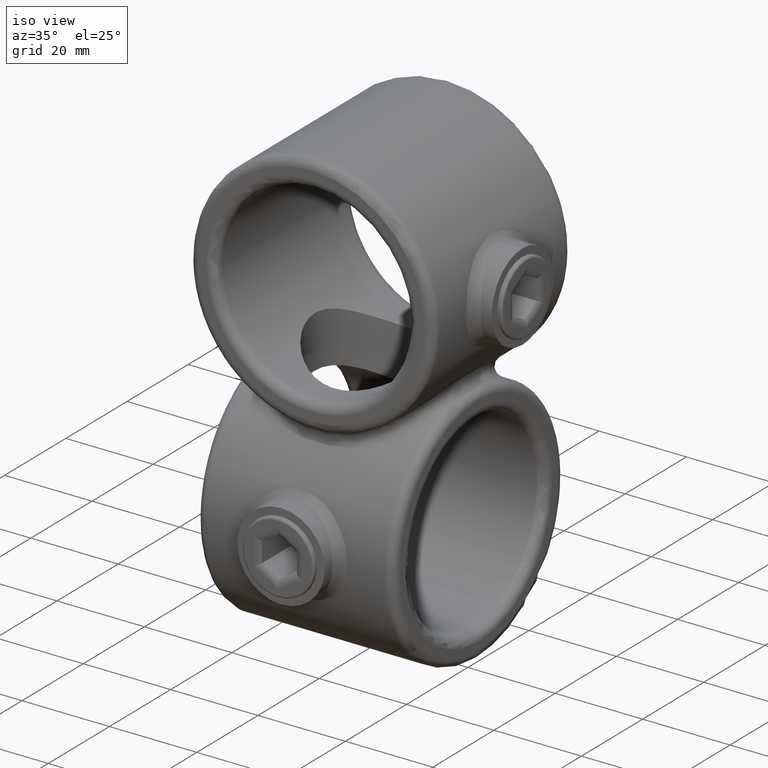
[diagram: clean part render]
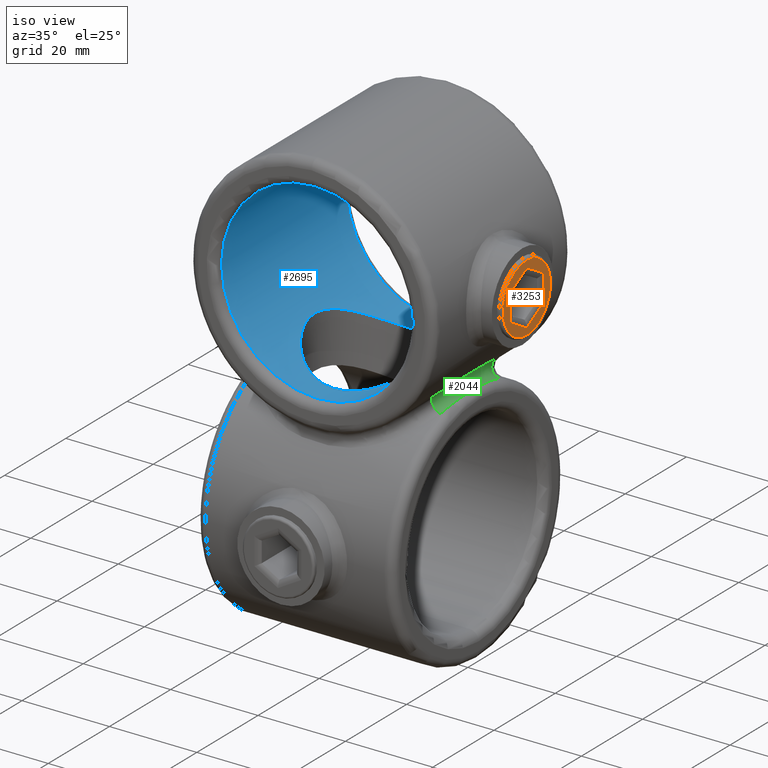
[diagram: same view with three faces highlighted in distinct colors, each labeled with its STEP entity id]
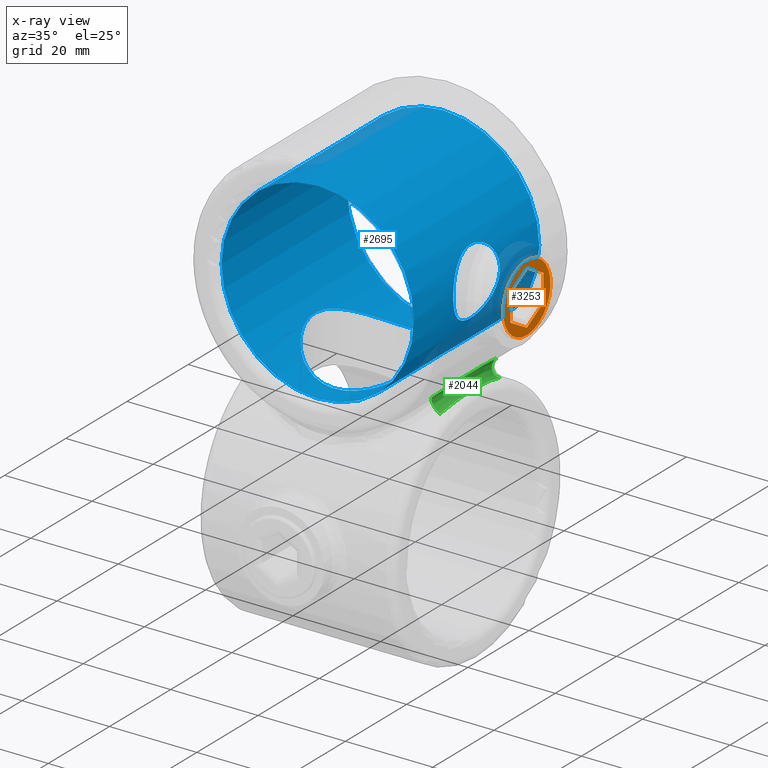
[diagram: x-ray of the same camera — body ghosted, the three highlighted faces saturated]
A machine part, iso view with three faces highlighted in distinct colors.
The next image is the same camera in x-ray (body ghosted, the three faces saturated) — at least one of them is partly hidden behind the body in this view.
Their STEP definitions:

[orange] entity #3253 — the highlighted planar face has unit normal (1, 0, 0).
#76 = CARTESIAN_POINT ( 'NONE',  ( 0.000000000000000000, 13.00000000000000000, 0.000000000000000000 ) ) ;
#122 = LINE ( 'NONE', #3307, #721 ) ;
#152 = EDGE_CURVE ( 'NONE', #3418, #341, #1518, .T. ) ;
#266 = VERTEX_POINT ( 'NONE', #2607 ) ;
#341 = VERTEX_POINT ( 'NONE', #2317 ) ;
#390 = DIRECTION ( 'NONE',  ( 0.000000000000000000, 0.000000000000000000, 1.000000000000000000 ) ) ;
#721 = VECTOR ( 'NONE', #3922, 1000.000000000000000 ) ;
#818 = LINE ( 'NONE', #1276, #2755 ) ;
#942 = PLANE ( 'NONE',  #3169 ) ;
#962 = VERTEX_POINT ( 'NONE', #2630 ) ;
#975 = DIRECTION ( 'NONE',  ( 0.000000000000000000, 1.000000000000000000, 0.000000000000000000 ) ) ;
#1005 = DIRECTION ( 'NONE',  ( 1.000000000000000000, -0.000000000000000000, 0.000000000000000000 ) ) ;
#1091 = CARTESIAN_POINT ( 'NONE',  ( 3.338806356441557099, 13.00000000000000000, 4.960106590458402742 ) ) ;
#1123 = FACE_OUTER_BOUND ( 'NONE', #2088, .T. ) ;
#1135 = ORIENTED_EDGE ( 'NONE', *, *, #152, .T. ) ;
#1248 = CARTESIAN_POINT ( 'NONE',  ( 0.000000000000000000, 13.00000000000000000, 0.000000000000000000 ) ) ;
#1276 = CARTESIAN_POINT ( 'NONE',  ( 2.626175134594813443, 13.00000000000000000, -5.371544418224547535 ) ) ;
#1518 = LINE ( 'NONE', #3518, #3165 ) ;
#1569 = EDGE_CURVE ( 'NONE', #962, #962, #2946, .T. ) ;
#1571 = EDGE_CURVE ( 'NONE', #3704, #3775, #818, .T. ) ;
#1617 = AXIS2_PLACEMENT_3D ( 'NONE', #76, #2228, #390 ) ;
#1641 = DIRECTION ( 'NONE',  ( -1.000000000000000000, 0.000000000000000000, -1.855319225643643478E-16 ) ) ;
#1710 = VECTOR ( 'NONE', #2010, 1000.000000000000227 ) ;
#1777 = DIRECTION ( 'NONE',  ( -0.4999999999999992228, 0.000000000000000000, 0.8660254037844390407 ) ) ;
#1793 = VECTOR ( 'NONE', #1641, 1000.000000000000000 ) ;
#1811 = EDGE_CURVE ( 'NONE', #1847, #266, #3238, .T. ) ;
#1847 = VERTEX_POINT ( 'NONE', #2967 ) ;
#1860 = FACE_BOUND ( 'NONE', #2742, .T. ) ;
#1935 = ORIENTED_EDGE ( 'NONE', *, *, #1569, .T. ) ;
#1988 = EDGE_CURVE ( 'NONE', #3775, #1847, #122, .T. ) ;
#1999 = CARTESIAN_POINT ( 'NONE',  ( 3.101262615825974844, 13.00000000000000000, -5.371544418224547535 ) ) ;
#2010 = DIRECTION ( 'NONE',  ( 0.4999999999999997780, 0.000000000000000000, -0.8660254037844387076 ) ) ;
#2088 = EDGE_LOOP ( 'NONE', ( #1935 ) ) ;
#2171 = ORIENTED_EDGE ( 'NONE', *, *, #1811, .T. ) ;
#2228 = DIRECTION ( 'NONE',  ( 0.000000000000000000, 1.000000000000000000, 0.000000000000000000 ) ) ;
#2294 = LINE ( 'NONE', #2668, #1710 ) ;
#2317 = CARTESIAN_POINT ( 'NONE',  ( -6.202525231651947024, 13.00000000000000000, 8.673617379884035472E-16 ) ) ;
#2561 = CARTESIAN_POINT ( 'NONE',  ( -2.626175134594815219, 13.00000000000000000, 5.371544418224547535 ) ) ;
#2607 = CARTESIAN_POINT ( 'NONE',  ( 3.101262615825978397, 13.00000000000000000, 5.371544418224548423 ) ) ;
#2614 = CARTESIAN_POINT ( 'NONE',  ( -3.101262615825973068, 13.00000000000000000, -5.371544418224547535 ) ) ;
#2617 = EDGE_CURVE ( 'NONE', #341, #3704, #2294, .T. ) ;
#2630 = CARTESIAN_POINT ( 'NONE',  ( 0.000000000000000000, 13.00000000000000000, 7.750000000000000000 ) ) ;
#2668 = CARTESIAN_POINT ( 'NONE',  ( -3.338806356441553547, 13.00000000000000000, -4.960106590458400966 ) ) ;
#2742 = EDGE_LOOP ( 'NONE', ( #1135, #3531, #2745, #3213, #2171, #2888 ) ) ;
#2745 = ORIENTED_EDGE ( 'NONE', *, *, #1571, .T. ) ;
#2755 = VECTOR ( 'NONE', #1005, 1000.000000000000000 ) ;
#2888 = ORIENTED_EDGE ( 'NONE', *, *, #3907, .T. ) ;
#2946 = CIRCLE ( 'NONE', #1617, 7.750000000000000000 ) ;
#2967 = CARTESIAN_POINT ( 'NONE',  ( 6.202525231651947912, 13.00000000000000000, -1.409462824231155764E-15 ) ) ;
#3134 = DIRECTION ( 'NONE',  ( 0.000000000000000000, -0.000000000000000000, 1.000000000000000000 ) ) ;
#3165 = VECTOR ( 'NONE', #3850, 1000.000000000000114 ) ;
#3169 = AXIS2_PLACEMENT_3D ( 'NONE', #1248, #975, #3134 ) ;
#3185 = VECTOR ( 'NONE', #1777, 1000.000000000000227 ) ;
#3213 = ORIENTED_EDGE ( 'NONE', *, *, #1988, .T. ) ;
#3238 = LINE ( 'NONE', #1091, #3185 ) ;
#3253 = ADVANCED_FACE ( 'NONE', ( #1860, #1123 ), #942, .T. ) ;
#3307 = CARTESIAN_POINT ( 'NONE',  ( 5.964981491036367878, 13.00000000000000000, -0.4114378277661481231 ) ) ;
#3343 = LINE ( 'NONE', #2561, #1793 ) ;
#3418 = VERTEX_POINT ( 'NONE', #3921 ) ;
#3518 = CARTESIAN_POINT ( 'NONE',  ( -5.964981491036366990, 13.00000000000000000, 0.4114378277661476790 ) ) ;
#3531 = ORIENTED_EDGE ( 'NONE', *, *, #2617, .T. ) ;
#3704 = VERTEX_POINT ( 'NONE', #2614 ) ;
#3775 = VERTEX_POINT ( 'NONE', #1999 ) ;
#3850 = DIRECTION ( 'NONE',  ( -0.4999999999999998335, 0.000000000000000000, -0.8660254037844387076 ) ) ;
#3907 = EDGE_CURVE ( 'NONE', #266, #3418, #3343, .T. ) ;
#3921 = CARTESIAN_POINT ( 'NONE',  ( -3.101262615825973956, 13.00000000000000000, 5.371544418224547535 ) ) ;
#3922 = DIRECTION ( 'NONE',  ( 0.4999999999999998890, -0.000000000000000000, 0.8660254037844387076 ) ) ;

[blue] entity #2695 — the highlighted cylindrical surface (bore or boss wall) has radius 22 mm, axis along (-0, -1, -0).
#6 = CARTESIAN_POINT ( 'NONE',  ( 7.638160736032747700, 12.94558388446425035, -20.64954476968555852 ) ) ;
#8 = CARTESIAN_POINT ( 'NONE',  ( 21.83462271507474384, 7.134393420986049783, -2.702393403582709741 ) ) ;
#18 = CARTESIAN_POINT ( 'NONE',  ( -7.667430613504349068, -12.90139389157289429, -20.62554290740601104 ) ) ;
#21 = CARTESIAN_POINT ( 'NONE',  ( 20.67305602479122228, -1.255594254057358361, 7.525127178381072923 ) ) ;
#34 = CARTESIAN_POINT ( 'NONE',  ( 14.99906112048535611, -1.036882269409412860, -16.09435202577049751 ) ) ;
#47 = CARTESIAN_POINT ( 'NONE',  ( 21.41773321504821936, 5.734349377110525836, 5.031814911919162192 ) ) ;
#51 = B_SPLINE_CURVE_WITH_KNOTS ( 'NONE', 3,
 ( #3360, #1783, #3955, #2434, #2134, #3047, #2421, #3022, #3034, #299, #2101, #1502, #1161, #1474, #596, #3651, #1146, #1172, #3971, #572, #548, #893, #1487, #3058, #2731, #3311, #870, #1450, #3630, #1767, #3940, #2087, #3012, #253, #2709, #845, #3430, #1529, #3692, #21, #904, #3729, #2155, #2510, #1200, #1872, #2803, #2470, #312, #3703, #2790, #1555, #1544, #47, #1850, #1570, #3716, #335, #2181, #3391, #322, #635, #620, #347, #921, #946, #2779, #2815, #361, #3107, #3097, #8, #1885, #1833, #2484, #3374, #929, #2496, #60, #606, #3081, #1236, #646, #1225, #2146, #3416, #3402, #2194, #1862 ),
 .UNSPECIFIED., .T., .F.,
 ( 4, 2, 2, 2, 2, 2, 2, 2, 2, 2, 2, 2, 2, 2, 2, 2, 2, 2, 2, 2, 2, 1, 2, 2, 2, 2, 2, 2, 2, 2, 2, 2, 2, 2, 2, 2, 2, 2, 2, 2, 2, 2, 2, 2, 4 ),
 ( 0.000000000000000000, 0.001501461663367374645, 0.002252192495051061859, 0.003002923326734749290, 0.004504384990102126320, 0.005255115821785815051, 0.006005846653469502049, 0.007507308316836877778, 0.009008769980204252639, 0.009759500811887941371, 0.01051023164357162837, 0.01201169330693900236, 0.01351315497030637809, 0.01501461663367375209, 0.01651607829704112435, 0.01726680912872481308, 0.01801753996040849487, 0.01951900162377586193, 0.02102046328714322551, 0.02252192495051059604, 0.02327265578219428130, 0.02402338661387796309, 0.02477411744556164488, 0.02552484827724532321, 0.02702630994061269026, 0.02852777160398005385, 0.03002923326734741397, 0.03077996409903109923, 0.03153069493071478102, 0.03228142576239846628, 0.03303215659408214461, 0.03453361825744950819, 0.03528434908913318652, 0.03603507992081687178, 0.03753654158418423537, 0.03828727241586792063, 0.03903800324755159895, 0.03978873407923527727, 0.04053946491091896254, 0.04204092657428631918, 0.04354238823765368277, 0.04504384990102103942, 0.04579458073270471774, 0.04654531156438839606, 0.04804677322775575271 ),
 .UNSPECIFIED. ) ;
#60 = CARTESIAN_POINT ( 'NONE',  ( 21.24049436844863337, 5.041190610016660578, -5.742064013625246766 ) ) ;
#85 = CARTESIAN_POINT ( 'NONE',  ( 1.025722204118190373, 14.97350134617962425, -21.98190843410769091 ) ) ;
#225 = CARTESIAN_POINT ( 'NONE',  ( -4.957272632626066766, 14.16611413949776832, -21.43982723672473867 ) ) ;
#253 = CARTESIAN_POINT ( 'NONE',  ( 21.23988548586972769, -5.038701048962225926, 5.744380954961320285 ) ) ;
#273 = CARTESIAN_POINT ( 'NONE',  ( -14.46079596665822820, 4.016413119679706156, -16.58082093972177873 ) ) ;
#284 = CARTESIAN_POINT ( 'NONE',  ( 4.977263904046719922, 14.15904944704892721, -21.43515876995187242 ) ) ;
#294 = CARTESIAN_POINT ( 'NONE',  ( 14.58767863818678734, -3.529232281504389945, -16.46871335115858770 ) ) ;
#299 = CARTESIAN_POINT ( 'NONE',  ( 21.10961248387739175, -4.449409778482963596, -6.197184970212590294 ) ) ;
#309 = CARTESIAN_POINT ( 'NONE',  ( 2.536063705156796022, 14.79269913498899847, -21.85905430174654995 ) ) ;
#312 = CARTESIAN_POINT ( 'NONE',  ( 20.90766126454527551, 3.387989993315587700, 6.849123641358018766 ) ) ;
#321 = CARTESIAN_POINT ( 'NONE',  ( 8.834067494357398687, 12.13225708143093584, -20.15305314738483133 ) ) ;
#322 = CARTESIAN_POINT ( 'NONE',  ( 21.86612931592375375, 7.231979957599387276, 2.467928310788698898 ) ) ;
#333 = CARTESIAN_POINT ( 'NONE',  ( 4.936467855388296577, -14.19901500600594879, -21.45987368452115973 ) ) ;
#335 = CARTESIAN_POINT ( 'NONE',  ( 21.66542382513451415, 6.598769858961003543, 3.828680771544732409 ) ) ;
#347 = CARTESIAN_POINT ( 'NONE',  ( 21.97832862680961341, 7.562282039497167041, 1.008260717355042857 ) ) ;
#361 = CARTESIAN_POINT ( 'NONE',  ( 21.93238654071083715, 7.427809546374198213, -1.741150023539525860 ) ) ;
#400 = CIRCLE ( 'NONE', #2239, 22.00000000000000000 ) ;
#519 = CARTESIAN_POINT ( 'NONE',  ( -3.509025057102380885, 14.59242860190847146, -21.72402833917552556 ) ) ;
#532 = CARTESIAN_POINT ( 'NONE',  ( -1.028044636911650045, 15.00000000000000533, -22.00000000000000355 ) ) ;
#533 = ORIENTED_EDGE ( 'NONE', *, *, #619, .T. ) ;
#544 = CARTESIAN_POINT ( 'NONE',  ( -12.96642247819893434, -7.556621219215588603, -17.77507721271802765 ) ) ;
#548 = CARTESIAN_POINT ( 'NONE',  ( 21.93214807940371003, -7.427105793317950955, -1.744120752521435502 ) ) ;
#557 = CARTESIAN_POINT ( 'NONE',  ( -14.20235431591701669, -4.923797347143072933, -16.80862314651261258 ) ) ;
#568 = CARTESIAN_POINT ( 'NONE',  ( -14.78877318169901400, 2.557642425495031180, -16.28836224153918266 ) ) ;
#572 = CARTESIAN_POINT ( 'NONE',  ( 21.91108197871979613, -7.364843628198604719, -1.990624038324368739 ) ) ;
#581 = CARTESIAN_POINT ( 'NONE',  ( 8.819414525139249506, -12.14287391076265621, -20.15945547529075199 ) ) ;
#594 = CARTESIAN_POINT ( 'NONE',  ( -1.052662226999785400, -14.97176097277775142, -21.98072112659617616 ) ) ;
#596 = CARTESIAN_POINT ( 'NONE',  ( 21.50472955117095708, -6.055171540852470002, -4.661166829668690781 ) ) ;
#604 = CARTESIAN_POINT ( 'NONE',  ( -2.575880259910304559, -14.78576153809504845, -21.85435753567283612 ) ) ;
#606 = CARTESIAN_POINT ( 'NONE',  ( 21.15035175818985280, 4.651928291994421372, -6.061788610552890866 ) ) ;
#608 = EDGE_LOOP ( 'NONE', ( #698 ) ) ;
#617 = CARTESIAN_POINT ( 'NONE',  ( 14.16675666250198695, -4.954373875810394345, -16.83272511901605739 ) ) ;
#619 = EDGE_CURVE ( 'NONE', #3681, #3681, #798, .T. ) ;
#620 = CARTESIAN_POINT ( 'NONE',  ( 21.96545535501798696, 7.524891623233034288, 1.256604829429523562 ) ) ;
#631 = VERTEX_POINT ( 'NONE', #2358 ) ;
#633 = CARTESIAN_POINT ( 'NONE',  ( 14.97424575020755277, 1.014909732218031380, -16.11759518720957018 ) ) ;
#635 = CARTESIAN_POINT ( 'NONE',  ( 21.91518116288209228, 7.377286110379626116, 1.991475131803960075 ) ) ;
#646 = CARTESIAN_POINT ( 'NONE',  ( 20.81118140044697640, 2.701486163473771462, -7.134774701856119172 ) ) ;
#698 = ORIENTED_EDGE ( 'NONE', *, *, #3062, .F. ) ;
#769 = CARTESIAN_POINT ( 'NONE',  ( 20.63636050760889162, 0.000000000000000000, -7.624999999999985789 ) ) ;
#798 = CIRCLE ( 'NONE', #2652, 22.00000000000000000 ) ;
#845 = CARTESIAN_POINT ( 'NONE',  ( 20.98574558890661734, -3.834666897946267916, 6.609199511160666063 ) ) ;
#852 = CARTESIAN_POINT ( 'NONE',  ( -9.975412398198393760, -11.21238622406623620, -19.61265243727037699 ) ) ;
#866 = CARTESIAN_POINT ( 'NONE',  ( -14.97191104760809033, 1.049046354614471932, -16.11977122533656726 ) ) ;
#870 = CARTESIAN_POINT ( 'NONE',  ( 21.86644352487346055, -7.232940398829818207, 2.465388843888933312 ) ) ;
#878 = CARTESIAN_POINT ( 'NONE',  ( -5.004531509665742561, -14.17547755779573215, -21.44423688668768335 ) ) ;
#890 = CARTESIAN_POINT ( 'NONE',  ( 14.00237940341367882, 5.400746360241621247, -16.97033402031881266 ) ) ;
#893 = CARTESIAN_POINT ( 'NONE',  ( 21.98261645709674283, -7.575267365103446338, -1.004430189336779078 ) ) ;
#902 = CARTESIAN_POINT ( 'NONE',  ( 11.30185342330741172, -9.908202382598373603, -18.89061496491328640 ) ) ;
#904 = CARTESIAN_POINT ( 'NONE',  ( 20.65924656668267900, -1.003802390371186792, 7.562819067106336668 ) ) ;
#919 = CARTESIAN_POINT ( 'NONE',  ( 6.751794077528043836, -13.40343999826196431, -20.94324252406440579 ) ) ;
#921 = CARTESIAN_POINT ( 'NONE',  ( 21.99565864146505945, 7.612501526352494885, 0.5044995840867542158 ) ) ;
#929 = CARTESIAN_POINT ( 'NONE',  ( 21.50449255108060242, 6.054291176447927469, -4.662098031544893217 ) ) ;
#946 = CARTESIAN_POINT ( 'NONE',  ( 22.00000359965280339, 7.625010385883468800, 0.2509227584278064249 ) ) ;
#1099 = VERTEX_POINT ( 'NONE', #1730 ) ;
#1106 = CARTESIAN_POINT ( 'NONE',  ( -14.99917499470775262, 0.5327495546023220951, -16.09424588766726671 ) ) ;
#1132 = CARTESIAN_POINT ( 'NONE',  ( -12.17571319098796323, 8.773609856053806055, -18.32634461231394596 ) ) ;
#1138 = ORIENTED_EDGE ( 'NONE', *, *, #1654, .T. ) ;
#1146 = CARTESIAN_POINT ( 'NONE',  ( 21.74189790547040246, -6.847146173374046185, -3.391686376140041315 ) ) ;
#1161 = CARTESIAN_POINT ( 'NONE',  ( 21.28509316720376177, -5.217688254469730502, -5.565712582313706136 ) ) ;
#1168 = CARTESIAN_POINT ( 'NONE',  ( 11.89338099096974410, 9.152708907545269668, -18.51142085898089462 ) ) ;
#1172 = CARTESIAN_POINT ( 'NONE',  ( 21.83435262132262267, -7.133564655147587530, -2.704525995297528240 ) ) ;
#1181 = CARTESIAN_POINT ( 'NONE',  ( -8.865101228325167781, -12.10942833839934707, -20.13932763877268428 ) ) ;
#1189 = DIRECTION ( 'NONE',  ( 0.000000000000000000, 0.000000000000000000, 1.000000000000000000 ) ) ;
#1196 = CARTESIAN_POINT ( 'NONE',  ( 14.17152457605938665, 4.941201431762468843, -16.82872467943387207 ) ) ;
#1200 = CARTESIAN_POINT ( 'NONE',  ( 20.65893883332975633, 0.9974168446168103497, 7.563658825007157915 ) ) ;
#1211 = CARTESIAN_POINT ( 'NONE',  ( 13.40944125343274074, -6.739462407427236457, -17.44333523485563475 ) ) ;
#1222 = CARTESIAN_POINT ( 'NONE',  ( -4.055564486865794294, -14.47646400859333404, -21.64589583118551630 ) ) ;
#1225 = CARTESIAN_POINT ( 'NONE',  ( 20.78146364550593717, 2.463087885312369441, -7.220580388854527243 ) ) ;
#1236 = CARTESIAN_POINT ( 'NONE',  ( 20.90850454013189719, 3.393333455650654251, -6.846573099697977227 ) ) ;
#1250 = CARTESIAN_POINT ( 'NONE',  ( 0.000000000000000000, 22.50000000000000000, 0.000000000000000000 ) ) ;
#1420 = CARTESIAN_POINT ( 'NONE',  ( -8.131516293641283255E-16, 15.00000000000000888, -22.00000000000000711 ) ) ;
#1432 = CARTESIAN_POINT ( 'NONE',  ( -14.16376001793966566, 4.963274774931155875, -16.83526492748626779 ) ) ;
#1446 = CARTESIAN_POINT ( 'NONE',  ( 0.000000000000000000, 20.49999999999999645, 0.000000000000000000 ) ) ;
#1447 = CARTESIAN_POINT ( 'NONE',  ( -13.42324328921319498, -6.711719282898749306, -17.43267109194180264 ) ) ;
#1450 = CARTESIAN_POINT ( 'NONE',  ( 21.74166348727912634, -6.846459346306680516, 3.394048229469690536 ) ) ;
#1458 = CARTESIAN_POINT ( 'NONE',  ( -11.33412867429149884, -9.871531548654179034, -18.87129062661863443 ) ) ;
#1463 = FACE_BOUND ( 'NONE', #2988, .T. ) ;
#1474 = CARTESIAN_POINT ( 'NONE',  ( 21.41731923223319356, -5.740732220939724684, -5.042601277762392975 ) ) ;
#1484 = CARTESIAN_POINT ( 'NONE',  ( 6.791760247564574193, 13.41009625206384825, -20.94625103352959883 ) ) ;
#1487 = CARTESIAN_POINT ( 'NONE',  ( 21.99988339459275721, -7.624663564660940196, -0.5069383500712786317 ) ) ;
#1500 = CARTESIAN_POINT ( 'NONE',  ( -6.817571760915980938, -13.36997276897671227, -20.92183614606784303 ) ) ;
#1502 = CARTESIAN_POINT ( 'NONE',  ( 21.24082390349373028, -5.034693334187710256, -5.731860609014176156 ) ) ;
#1514 = CARTESIAN_POINT ( 'NONE',  ( 11.29189505588965581, 9.885226238655016928, -18.88434059376837126 ) ) ;
#1517 = DIRECTION ( 'NONE',  ( 0.000000000000000000, 0.000000000000000000, -1.000000000000000000 ) ) ;
#1525 = CARTESIAN_POINT ( 'NONE',  ( 10.30782397136557549, 10.90746456531147146, -19.43949648108512207 ) ) ;
#1529 = CARTESIAN_POINT ( 'NONE',  ( 20.77893231174704880, -2.471997476136124750, 7.230253966135369303 ) ) ;
#1541 = CARTESIAN_POINT ( 'NONE',  ( -6.375574478538800882, -13.58673709815225195, -21.06127270345997360 ) ) ;
#1544 = CARTESIAN_POINT ( 'NONE',  ( 21.37324890084305551, 5.566458283347454739, 5.217013377194971824 ) ) ;
#1555 = CARTESIAN_POINT ( 'NONE',  ( 21.23965794442501220, 5.037851880277131045, 5.745338895548609770 ) ) ;
#1560 = CARTESIAN_POINT ( 'NONE',  ( 0.000000000000000000, -20.49999999999999645, 0.000000000000000000 ) ) ;
#1570 = CARTESIAN_POINT ( 'NONE',  ( 21.54604913611921546, 6.195977865238270432, 4.451008252176442248 ) ) ;
#1654 = EDGE_CURVE ( 'NONE', #631, #631, #400, .T. ) ;
#1730 = CARTESIAN_POINT ( 'NONE',  ( 0.000000000000000000, 15.00000000000000355, -22.00000000000000000 ) ) ;
#1737 = CARTESIAN_POINT ( 'NONE',  ( -3.996492383652048286, 14.46656111157289004, -21.63951923038492353 ) ) ;
#1765 = CARTESIAN_POINT ( 'NONE',  ( -13.63466705717373095, -6.271643831378375111, -17.26716607579550455 ) ) ;
#1767 = CARTESIAN_POINT ( 'NONE',  ( 21.54626958716178464, -6.196748339920726600, 4.449959614901866090 ) ) ;
#1783 = CARTESIAN_POINT ( 'NONE',  ( 20.63636050760888807, -0.5080329043630298358, -7.624999999999985789 ) ) ;
#1795 = CARTESIAN_POINT ( 'NONE',  ( -9.237337196541949069, 11.85790601382026033, -19.98558775840680823 ) ) ;
#1807 = CARTESIAN_POINT ( 'NONE',  ( -0.5448102151117172331, -14.99867154693434657, -21.99909423806490594 ) ) ;
#1820 = CARTESIAN_POINT ( 'NONE',  ( 11.90089936621351008, -9.179968064716776510, -18.51442623612462768 ) ) ;
#1831 = CARTESIAN_POINT ( 'NONE',  ( 9.221637132837134487, 11.84020336251019323, -19.97820262187411799 ) ) ;
#1833 = CARTESIAN_POINT ( 'NONE',  ( 21.73898407993326032, 6.836416793187994223, -3.386157133365277350 ) ) ;
#1838 = VERTEX_POINT ( 'NONE', #769 ) ;
#1848 = CARTESIAN_POINT ( 'NONE',  ( 10.29550688363713640, -10.91918629400074181, -19.44606243298661141 ) ) ;
#1850 = CARTESIAN_POINT ( 'NONE',  ( 21.50402882993780551, 6.048695944299450566, 4.649215144515823184 ) ) ;
#1858 = CARTESIAN_POINT ( 'NONE',  ( 14.89459403073917088, -2.043150227165039912, -16.19341281614321559 ) ) ;
#1862 = CARTESIAN_POINT ( 'NONE',  ( 20.63636050760889162, 5.421010862427522170E-16, -7.624999999999985789 ) ) ;
#1872 = CARTESIAN_POINT ( 'NONE',  ( 20.67264887702680554, 1.248947824297873321, 7.526244566691020488 ) ) ;
#1883 = CARTESIAN_POINT ( 'NONE',  ( 0.5140223184558236902, 15.00000000000000888, -22.00000000000000355 ) ) ;
#1885 = CARTESIAN_POINT ( 'NONE',  ( 21.77286709399465536, 6.943094545554348684, -3.161635292792290386 ) ) ;
#2055 = CARTESIAN_POINT ( 'NONE',  ( -6.767470012673439506, 13.39543766988532170, -20.93812712246290886 ) ) ;
#2087 = CARTESIAN_POINT ( 'NONE',  ( 21.41744710376905303, -5.733298609835538961, 5.033065880176717855 ) ) ;
#2097 = CARTESIAN_POINT ( 'NONE',  ( -5.423139703379095344, 13.99398009886227534, -21.32627696626732927 ) ) ;
#2101 = CARTESIAN_POINT ( 'NONE',  ( 21.15312840405047012, -4.650847035576439303, -6.047477561938728208 ) ) ;
#2108 = CARTESIAN_POINT ( 'NONE',  ( -12.96941819273429708, 7.595464317850735725, -17.78217607538291389 ) ) ;
#2117 = CARTESIAN_POINT ( 'NONE',  ( 14.59327303872507287, 3.505353074012253156, -16.46373869576988724 ) ) ;
#2129 = CARTESIAN_POINT ( 'NONE',  ( 12.69848128223315165, -7.998398463021489491, -17.96809448075072169 ) ) ;
#2134 = CARTESIAN_POINT ( 'NONE',  ( 20.73015510809695883, -1.984216512385078346, -7.366594443902308775 ) ) ;
#2143 = CARTESIAN_POINT ( 'NONE',  ( 5.441089251799574811, 13.98693032589549468, -21.32165349261074994 ) ) ;
#2146 = CARTESIAN_POINT ( 'NONE',  ( 20.73004966125873949, 1.983060674699985926, -7.366888993540050556 ) ) ;
#2154 = CARTESIAN_POINT ( 'NONE',  ( 13.99806494578994354, -5.411948134260394561, -16.97390127793968162 ) ) ;
#2155 = CARTESIAN_POINT ( 'NONE',  ( 20.63181072917495840, -0.002997238903065145392, 7.637279292131632147 ) ) ;
#2161 = DIRECTION ( 'NONE',  ( -0.000000000000000000, -1.000000000000000000, -0.000000000000000000 ) ) ;
#2164 = ORIENTED_EDGE ( 'NONE', *, *, #2658, .F. ) ;
#2167 = CARTESIAN_POINT ( 'NONE',  ( 15.00046009304932682, 0.4979325566805887782, -16.09304810790063911 ) ) ;
#2181 = CARTESIAN_POINT ( 'NONE',  ( 21.73834466594847115, 6.834383874527161673, 3.390244409704353146 ) ) ;
#2194 = CARTESIAN_POINT ( 'NONE',  ( 20.63636050760889873, 0.5080329043630237296, -7.624999999999985789 ) ) ;
#2239 = AXIS2_PLACEMENT_3D ( 'NONE', #1446, #2733, #3664 ) ;
#2358 = CARTESIAN_POINT ( 'NONE',  ( 0.000000000000000000, 20.49999999999999645, 22.00000000000000000 ) ) ;
#2366 = CARTESIAN_POINT ( 'NONE',  ( -15.00159356422581070, -0.9942238042613966709, -16.09199165398808518 ) ) ;
#2393 = CARTESIAN_POINT ( 'NONE',  ( -13.42415642387457275, 6.762350431746436463, -17.43642400030397965 ) ) ;
#2402 = CARTESIAN_POINT ( 'NONE',  ( -11.28672505007406990, 9.891254689314099124, -18.88746993257555218 ) ) ;
#2421 = CARTESIAN_POINT ( 'NONE',  ( 20.81137636762997545, -2.702961014776449566, -7.134204655069264156 ) ) ;
#2432 = CARTESIAN_POINT ( 'NONE',  ( 3.526277033851346943, 14.58838363546319172, -21.72130853249522886 ) ) ;
#2434 = CARTESIAN_POINT ( 'NONE',  ( 20.70827237386584230, -1.741507020058461919, -7.427662671633694202 ) ) ;
#2442 = CARTESIAN_POINT ( 'NONE',  ( -8.076492801691980361, -12.64905286950367724, -20.46833656051471806 ) ) ;
#2455 = CARTESIAN_POINT ( 'NONE',  ( 2.035995305633605312, 14.86985446194757365, -21.91143828143086836 ) ) ;
#2468 = CARTESIAN_POINT ( 'NONE',  ( 0.4690235057691026777, -15.00123272582437828, -22.00084049341722903 ) ) ;
#2470 = CARTESIAN_POINT ( 'NONE',  ( 20.77838800993375656, 2.467708437639833274, 7.231831435827101195 ) ) ;
#2481 = CARTESIAN_POINT ( 'NONE',  ( 9.940325471475928154, -11.24363998957175070, -19.63053126464459908 ) ) ;
#2484 = CARTESIAN_POINT ( 'NONE',  ( 21.66606515539267619, 6.600874567836600981, -3.825063351333062744 ) ) ;
#2486 = FACE_OUTER_BOUND ( 'NONE', #2901, .T. ) ;
#2496 = CARTESIAN_POINT ( 'NONE',  ( 21.41718510963094246, 5.740280460972199350, -5.043221404268416919 ) ) ;
#2510 = CARTESIAN_POINT ( 'NONE',  ( 20.64083727949121183, 0.4972426380537070534, 7.612918293396787384 ) ) ;
#2590 = FACE_BOUND ( 'NONE', #608, .T. ) ;
#2652 = AXIS2_PLACEMENT_3D ( 'NONE', #1560, #2161, #1189 ) ;
#2658 = EDGE_CURVE ( 'NONE', #1838, #1838, #51, .T. ) ;
#2682 = CARTESIAN_POINT ( 'NONE',  ( -14.90066042658263434, -1.998857804282092365, -16.18777140945326565 ) ) ;
#2694 = CARTESIAN_POINT ( 'NONE',  ( -10.96867053027024319, 10.24267069444372602, -19.07442431345317502 ) ) ;
#2695 = ADVANCED_FACE ( 'NONE', ( #2732, #2486, #1463, #2590 ), #3560, .F. ) ;
#2705 = CARTESIAN_POINT ( 'NONE',  ( -11.92992529085058173, -9.141750275971585182, -18.49555566650144911 ) ) ;
#2709 = CARTESIAN_POINT ( 'NONE',  ( 21.15165330957719902, -4.657852512096009256, 6.057276481397573242 ) ) ;
#2716 = CARTESIAN_POINT ( 'NONE',  ( -12.72033566763502677, -7.963462776397452814, -17.95258295391430536 ) ) ;
#2728 = CARTESIAN_POINT ( 'NONE',  ( -14.86648258391357302, 2.060658694159104520, -16.21705399747045462 ) ) ;
#2731 = CARTESIAN_POINT ( 'NONE',  ( 21.98247489727024728, -7.574850727779137038, 1.006355580253733617 ) ) ;
#2732 = FACE_OUTER_BOUND ( 'NONE', #2853, .T. ) ;
#2733 = DIRECTION ( 'NONE',  ( 0.000000000000000000, 1.000000000000000000, 0.000000000000000000 ) ) ;
#2739 = CARTESIAN_POINT ( 'NONE',  ( 7.610093028496840439, -12.93543239130317168, -20.64685484001730842 ) ) ;
#2751 = CARTESIAN_POINT ( 'NONE',  ( 13.61941060921988544, -6.304495181372314683, -17.27920141318065461 ) ) ;
#2765 = CARTESIAN_POINT ( 'NONE',  ( -2.070283436192067228, -14.86524977536441305, -21.90831179034962517 ) ) ;
#2776 = CARTESIAN_POINT ( 'NONE',  ( 3.985145410040852543, -14.49654498217794263, -21.65935080343463781 ) ) ;
#2779 = CARTESIAN_POINT ( 'NONE',  ( 21.99999279391161622, 7.624979208662980845, -0.5027917357800624210 ) ) ;
#2789 = CARTESIAN_POINT ( 'NONE',  ( 14.79468593128575371, 2.523566197047902193, -16.28298430939447172 ) ) ;
#2790 = CARTESIAN_POINT ( 'NONE',  ( 21.15126453352803892, 4.656059681203969625, 6.058616424584794657 ) ) ;
#2801 = CARTESIAN_POINT ( 'NONE',  ( -8.131516293641283255E-16, 15.00000000000000888, -22.00000000000000711 ) ) ;
#2803 = CARTESIAN_POINT ( 'NONE',  ( 20.72629806253243956, 1.990827133846863939, 7.377780432148797196 ) ) ;
#2815 = CARTESIAN_POINT ( 'NONE',  ( 21.98279126476140632, 7.575773091525833003, -1.000809328709070023 ) ) ;
#2847 = B_SPLINE_CURVE_WITH_KNOTS ( 'NONE', 3,
 ( #1420, #532, #3599, #519, #1737, #225, #2097, #2981, #2055, #3614, #3911, #1795, #3322, #2694, #2402, #3625, #1132, #2108, #2393, #3964, #1432, #273, #3923, #568, #2728, #866, #1106, #2366, #2682, #3308, #557, #1765, #1447, #544, #2716, #2705, #1458, #3009, #852, #3042, #1181, #2442, #18, #1500, #1541, #878, #1222, #604, #2765, #594, #1807, #2468, #3358, #3993, #3672, #2776, #333, #3400, #919, #2739, #3980, #581, #3056, #2481, #1848, #902, #1820, #2129, #3069, #1211, #2751, #2154, #617, #3712, #294, #1858, #34, #2167, #633, #3659, #2789, #2117, #3385, #1196, #890, #3370, #3080, #3029, #1168, #1514, #3690, #1525, #3349, #1831, #321, #6, #1484, #2143, #284, #3702, #2432, #309, #2455, #85, #1883, #2801 ),
 .UNSPECIFIED., .T., .F.,
 ( 4, 2, 2, 2, 2, 2, 2, 2, 2, 2, 2, 2, 2, 2, 2, 2, 2, 2, 2, 2, 2, 2, 2, 2, 2, 2, 2, 2, 2, 2, 2, 2, 2, 2, 2, 2, 2, 2, 2, 2, 2, 2, 2, 2, 2, 2, 2, 2, 2, 2, 2, 2, 4 ),
 ( 0.000000000000000000, 0.003034778666230587320, 0.004552167999345881413, 0.006069557332461174640, 0.007586946665576467866, 0.009104335998691762827, 0.01213911466492234928, 0.01365650399803763904, 0.01517389333115292879, 0.01820867199738351525, 0.01972606133049881194, 0.02124345066361410517, 0.02276083999672939839, 0.02427822932984469162, 0.02731300799607527807, 0.03034778666230586452, 0.03186517599542115775, 0.03338256532853645098, 0.03641734399476703743, 0.03793473332788233066, 0.03945212266099762388, 0.04096951199411291711, 0.04248690132722821033, 0.04552167999345878985, 0.04703906932657407614, 0.04855645865968936936, 0.05007384799280465565, 0.05159123732591994888, 0.05462601599215052145, 0.05614340532526581468, 0.05766079465838110790, 0.05917818399149640113, 0.06069557332461169435, 0.06373035199084228775, 0.06524774132395758097, 0.06676513065707287420, 0.06828251999018816742, 0.06979990932330346065, 0.07283468798953404710, 0.07435207732264934033, 0.07586946665576463356, 0.07738685598887992678, 0.07890424532199522001, 0.08193902398822580646, 0.08345641332134109969, 0.08497380265445639291, 0.08649119198757168614, 0.08800858132068697937, 0.09104335998691757970, 0.09256074932003287292, 0.09407813865314816615, 0.09559552798626347325, 0.09711291731937876648 ),
 .UNSPECIFIED. ) ;
#2853 = EDGE_LOOP ( 'NONE', ( #533 ) ) ;
#2901 = EDGE_LOOP ( 'NONE', ( #1138 ) ) ;
#2981 = CARTESIAN_POINT ( 'NONE',  ( -6.328242611923307948, 13.60864683553652377, -21.07543306622545742 ) ) ;
#2988 = EDGE_LOOP ( 'NONE', ( #2164 ) ) ;
#3009 = CARTESIAN_POINT ( 'NONE',  ( -10.32798425590709357, -10.88853264632581741, -19.42883840814114649 ) ) ;
#3012 = CARTESIAN_POINT ( 'NONE',  ( 21.37281694012202848, -5.564774560389263769, 5.218750621190686445 ) ) ;
#3022 = CARTESIAN_POINT ( 'NONE',  ( 20.90860310004765310, -3.393855672290382319, -6.846266567036095374 ) ) ;
#3029 = CARTESIAN_POINT ( 'NONE',  ( 12.17882113602346905, 8.769570456767354472, -18.32433529392846339 ) ) ;
#3034 = CARTESIAN_POINT ( 'NONE',  ( 20.98489372196626945, -3.830133437854334133, -6.611928506554288987 ) ) ;
#3036 = AXIS2_PLACEMENT_3D ( 'NONE', #1250, #3071, #1517 ) ;
#3042 = CARTESIAN_POINT ( 'NONE',  ( -9.244641419895845758, -11.82214288398286151, -19.96751344451391574 ) ) ;
#3047 = CARTESIAN_POINT ( 'NONE',  ( 20.78170271618218123, -2.465147489712833817, -7.219894509126600468 ) ) ;
#3056 = CARTESIAN_POINT ( 'NONE',  ( 9.202595920285107312, -11.85503011476234114, -19.98699718664647307 ) ) ;
#3058 = CARTESIAN_POINT ( 'NONE',  ( 22.00011542964955069, -7.625333042988611254, 0.4967664929795495010 ) ) ;
#3062 = EDGE_CURVE ( 'NONE', #1099, #1099, #2847, .T. ) ;
#3069 = CARTESIAN_POINT ( 'NONE',  ( 12.94790379501317901, -7.588494948635887027, -17.78861563359846798 ) ) ;
#3071 = DIRECTION ( 'NONE',  ( -0.000000000000000000, -1.000000000000000000, -0.000000000000000000 ) ) ;
#3080 = CARTESIAN_POINT ( 'NONE',  ( 12.98022032285329352, 7.578263746269433554, -17.77452315198482680 ) ) ;
#3081 = CARTESIAN_POINT ( 'NONE',  ( 20.98471832579984309, 3.829028669500126991, -6.612432036779877897 ) ) ;
#3097 = CARTESIAN_POINT ( 'NONE',  ( 21.86249712203614948, 7.219015430525962174, -2.467673975803815090 ) ) ;
#3107 = CARTESIAN_POINT ( 'NONE',  ( 21.91135148318828385, 7.365645063057995934, -1.987679914392844971 ) ) ;
#3308 = CARTESIAN_POINT ( 'NONE',  ( -14.49688323211304564, -3.983150791087994858, -16.55034745579434130 ) ) ;
#3311 = CARTESIAN_POINT ( 'NONE',  ( 21.91552872549091546, -7.378316898645443267, 1.987851816712461250 ) ) ;
#3322 = CARTESIAN_POINT ( 'NONE',  ( -9.967281022136932123, 11.24942014734491202, -19.62740159549499808 ) ) ;
#3349 = CARTESIAN_POINT ( 'NONE',  ( 9.957595249216019795, 11.22832596285435258, -19.62176007047199988 ) ) ;
#3358 = CARTESIAN_POINT ( 'NONE',  ( 0.9750051185251846775, -14.97688030092303180, -21.98421241487637445 ) ) ;
#3360 = CARTESIAN_POINT ( 'NONE',  ( 20.63636050760889162, 5.421010862427522170E-16, -7.624999999999985789 ) ) ;
#3370 = CARTESIAN_POINT ( 'NONE',  ( 13.43587748563003359, 6.739136221383791536, -17.42735375966400113 ) ) ;
#3374 = CARTESIAN_POINT ( 'NONE',  ( 21.62680501342272166, 6.471242097236009627, -4.040531449598909752 ) ) ;
#3385 = CARTESIAN_POINT ( 'NONE',  ( 14.46782651105361239, 3.991187347790247308, -16.57468187302840334 ) ) ;
#3391 = CARTESIAN_POINT ( 'NONE',  ( 21.77276342539654053, 6.942778740525270109, 3.162490027444849527 ) ) ;
#3400 = CARTESIAN_POINT ( 'NONE',  ( 6.304392086798174866, -13.61983208130454415, -21.08265552003916454 ) ) ;
#3402 = CARTESIAN_POINT ( 'NONE',  ( 20.65513876949686178, 1.006754158728072168, -7.574700002619595196 ) ) ;
#3416 = CARTESIAN_POINT ( 'NONE',  ( 20.70820922133502506, 1.740717378502645962, -7.427838196583784303 ) ) ;
#3430 = CARTESIAN_POINT ( 'NONE',  ( 20.90787754574373380, -3.389113006919818982, 6.848449237832352487 ) ) ;
#3560 = CYLINDRICAL_SURFACE ( 'NONE', #3036, 22.00000000000000000 ) ;
#3564 = CARTESIAN_POINT ( 'NONE',  ( 0.000000000000000000, -20.49999999999999645, 22.00000000000000000 ) ) ;
#3599 = CARTESIAN_POINT ( 'NONE',  ( -2.033143738700570857, 14.89547729851106439, -21.92836024577481169 ) ) ;
#3614 = CARTESIAN_POINT ( 'NONE',  ( -7.620753230209468931, 12.92905723339752022, -20.64286651541164375 ) ) ;
#3625 = CARTESIAN_POINT ( 'NONE',  ( -11.89179719582502948, 9.154902573933568988, -18.51247801520053926 ) ) ;
#3630 = CARTESIAN_POINT ( 'NONE',  ( 21.66750249047058219, -6.609887793085299279, 3.833383702826280270 ) ) ;
#3651 = CARTESIAN_POINT ( 'NONE',  ( 21.66839849050474598, -6.612957164797943932, -3.828887062803088437 ) ) ;
#3659 = CARTESIAN_POINT ( 'NONE',  ( 14.87126758369049639, 2.025704323546672292, -16.21265896947954488 ) ) ;
#3664 = DIRECTION ( 'NONE',  ( 0.000000000000000000, 0.000000000000000000, 1.000000000000000000 ) ) ;
#3672 = CARTESIAN_POINT ( 'NONE',  ( 2.492494172783336737, -14.80017813705330809, -21.86411873572760456 ) ) ;
#3681 = VERTEX_POINT ( 'NONE', #3564 ) ;
#3690 = CARTESIAN_POINT ( 'NONE',  ( 10.97497602693495367, 10.23591322141738225, -19.07079336763373689 ) ) ;
#3692 = CARTESIAN_POINT ( 'NONE',  ( 20.72684693076449847, -1.996345360403078528, 7.376242548108289832 ) ) ;
#3702 = CARTESIAN_POINT ( 'NONE',  ( 4.019794998371907901, 14.46005136178869499, -21.63516664217392460 ) ) ;
#3703 = CARTESIAN_POINT ( 'NONE',  ( 20.98554274749458415, 3.833523809052763909, 6.609827527296566529 ) ) ;
#3712 = CARTESIAN_POINT ( 'NONE',  ( 14.46137243304723619, -4.013916066456613585, -16.58029965409551565 ) ) ;
#3716 = CARTESIAN_POINT ( 'NONE',  ( 21.62674552940632822, 6.471014644099920332, 4.040740729533354170 ) ) ;
#3729 = CARTESIAN_POINT ( 'NONE',  ( 20.64098418219159825, -0.5033669216088962894, 7.612520714727058824 ) ) ;
#3911 = CARTESIAN_POINT ( 'NONE',  ( -8.035915788723377418, 12.67511896651672565, -20.48443522700701180 ) ) ;
#3923 = CARTESIAN_POINT ( 'NONE',  ( -14.58593320862419773, 3.535519683156305160, -16.47024921380648266 ) ) ;
#3940 = CARTESIAN_POINT ( 'NONE',  ( 21.50412552354316631, -6.049056706553280982, 4.648803939148644204 ) ) ;
#3955 = CARTESIAN_POINT ( 'NONE',  ( 20.65512392540477293, -1.006716115207703099, -7.574742604297248327 ) ) ;
#3964 = CARTESIAN_POINT ( 'NONE',  ( -13.99261239376248867, 5.425968868462375916, -16.97839841683195061 ) ) ;
#3971 = CARTESIAN_POINT ( 'NONE',  ( 21.86220862496995565, -7.218142015182904991, -2.470208812716792046 ) ) ;
#3980 = CARTESIAN_POINT ( 'NONE',  ( 8.023159893528118758, -12.68307394529415610, -20.48937829582316894 ) ) ;
#3993 = CARTESIAN_POINT ( 'NONE',  ( 1.985095812895469880, -14.87672588787437000, -21.91610424088139553 ) ) ;

[green] entity #2044 — the highlighted face is a freeform B-spline surface patch.
#1 = CARTESIAN_POINT ( 'NONE',  ( 20.59828011833579353, 0.8941876716308260198, -18.96604482144088166 ) ) ;
#5 = CARTESIAN_POINT ( 'NONE',  ( 21.08530879107980738, 5.453462693447504783, -22.62196605002862881 ) ) ;
#38 = CARTESIAN_POINT ( 'NONE',  ( 20.47048638175271762, -3.589309731649667157, -19.10405498754199627 ) ) ;
#100 = EDGE_CURVE ( 'NONE', #1247, #2336, #350, .T. ) ;
#224 = CARTESIAN_POINT ( 'NONE',  ( 16.66324535814191066, 7.984673815224831550, -22.82389214718334003 ) ) ;
#237 = CARTESIAN_POINT ( 'NONE',  ( 19.75095090553830701, 8.442009450664381021, -19.84734440841323533 ) ) ;
#249 = CARTESIAN_POINT ( 'NONE',  ( 17.25225069462110028, 7.207204967101503712, -22.33391148462226283 ) ) ;
#272 = CARTESIAN_POINT ( 'NONE',  ( 20.57331731109907480, -1.800286111512419351, -18.99327309236522510 ) ) ;
#283 = CARTESIAN_POINT ( 'NONE',  ( 17.07153798967602754, -7.494486862999231391, -22.48682539720028473 ) ) ;
#293 = CARTESIAN_POINT ( 'NONE',  ( 20.46962219841077157, -3.601222706377344540, -19.10498298870383493 ) ) ;
#338 = CARTESIAN_POINT ( 'NONE',  ( 20.17284590946601242, 6.257349452957400970, -19.41859858048655596 ) ) ;
#350 = B_SPLINE_CURVE_WITH_KNOTS ( 'NONE', 3,
 ( #3429, #2814, #372, #2578, #2897, #3808, #3837, #1039, #3490, #2254, #450, #761, #1318, #1028, #1939, #1305 ),
 .UNSPECIFIED., .F., .F.,
 ( 4, 2, 2, 2, 2, 2, 2, 4 ),
 ( 0.000000000000000000, 0.002511431423528065216, 0.005022862847056127830, 0.01004572569411225566, 0.01255715711764032044, 0.01506858854116838176, 0.01758001996469644307, 0.02009145138822450785 ),
 .UNSPECIFIED. ) ;
#351 = CARTESIAN_POINT ( 'NONE',  ( 20.17139971744139260, -6.266141702546588199, -19.42009696985540401 ) ) ;
#352 = CARTESIAN_POINT ( 'NONE',  ( 20.49999999999999645, 9.814194670230657280, -23.77631637288887489 ) ) ;
#372 = CARTESIAN_POINT ( 'NONE',  ( 20.78735771320225467, 8.244882252040646620, -23.24752961476865210 ) ) ;
#450 = CARTESIAN_POINT ( 'NONE',  ( 21.17632480160088448, -4.168593731485771059, -22.41752804333555460 ) ) ;
#476 = ORIENTED_EDGE ( 'NONE', *, *, #687, .F. ) ;
#541 = VERTEX_POINT ( 'NONE', #2183 ) ;
#543 = CARTESIAN_POINT ( 'NONE',  ( 19.93569336671615488, 7.583297122088563214, -19.66177183591107891 ) ) ;
#556 = CARTESIAN_POINT ( 'NONE',  ( 16.17799585300437215, -8.298292718235513732, -23.20899116147276686 ) ) ;
#567 = CARTESIAN_POINT ( 'NONE',  ( 20.77566936881447646, -8.279508015242408092, -23.26796673896498646 ) ) ;
#574 = ORIENTED_EDGE ( 'NONE', *, *, #100, .F. ) ;
#580 = CARTESIAN_POINT ( 'NONE',  ( 20.59820970715230715, -0.9007271117192141574, -18.96612129201099606 ) ) ;
#593 = CARTESIAN_POINT ( 'NONE',  ( 19.93497959735413971, -7.586792014586556832, -19.66249294627599298 ) ) ;
#603 = CARTESIAN_POINT ( 'NONE',  ( 18.63847583334187874, -1.641997052547079505, -21.08909974683336941 ) ) ;
#613 = CARTESIAN_POINT ( 'NONE',  ( 20.59821470026919599, -0.8976998228539507796, -18.96611586920068504 ) ) ;
#687 = EDGE_CURVE ( 'NONE', #541, #2407, #1229, .T. ) ;
#761 = CARTESIAN_POINT ( 'NONE',  ( 21.05975418159540880, -5.820017429702117440, -22.67947664043222034 ) ) ;
#791 = CARTESIAN_POINT ( 'NONE',  ( 20.58043995295554751, 9.438682525452511740, -23.63578122373543522 ) ) ;
#829 = CARTESIAN_POINT ( 'NONE',  ( 17.56958115393212339, 6.583263066915291617, -22.06081051635565160 ) ) ;
#841 = CARTESIAN_POINT ( 'NONE',  ( 20.01726601106467029, 7.148727360631679240, -19.57855744890082050 ) ) ;
#851 = CARTESIAN_POINT ( 'NONE',  ( 18.46947994052399622, 3.242102475657155480, -21.24823026580085994 ) ) ;
#865 = CARTESIAN_POINT ( 'NONE',  ( 21.05043702304045894, -5.876222234056686311, -22.69897403882825415 ) ) ;
#877 = CARTESIAN_POINT ( 'NONE',  ( 18.63872340719236931, 1.636685688061992883, -21.08886098522021868 ) ) ;
#889 = CARTESIAN_POINT ( 'NONE',  ( 19.41434195223748205, -9.700475186688574780, -20.17696436766537005 ) ) ;
#901 = CARTESIAN_POINT ( 'NONE',  ( 16.66382565346125233, -7.984065035898390228, -22.82341775679376639 ) ) ;
#908 = AXIS2_PLACEMENT_3D ( 'NONE', #978, #3445, #3460 ) ;
#909 = EDGE_CURVE ( 'NONE', #2407, #1247, #2591, .T. ) ;
#912 = CARTESIAN_POINT ( 'NONE',  ( 19.28529228833331999, -10.10803937441636435, -20.30075911199203631 ) ) ;
#978 = CARTESIAN_POINT ( 'NONE',  ( 20.49999999999976197, -10.51520857524744557, -21.90319611380962783 ) ) ;
#994 = DIRECTION ( 'NONE',  ( 0.3507117937966000576, -0.8770730540272135833, 0.3282439574331077470 ) ) ;
#1013 = EDGE_LOOP ( 'NONE', ( #2229, #476, #1911, #574 ) ) ;
#1028 = CARTESIAN_POINT ( 'NONE',  ( 20.78731485258109046, -8.244901571429144482, -23.24759838540709467 ) ) ;
#1039 = CARTESIAN_POINT ( 'NONE',  ( 21.28477527319128626, -0.8319980424805155650, -22.16040050830346431 ) ) ;
#1119 = CARTESIAN_POINT ( 'NONE',  ( 20.77562907683183013, 8.279816985439397925, -23.26804869518927887 ) ) ;
#1131 = CARTESIAN_POINT ( 'NONE',  ( 17.70977558844676736, 6.245662387692037854, -21.93778030718081595 ) ) ;
#1144 = CARTESIAN_POINT ( 'NONE',  ( 16.17799585300458887, 8.298292718235440901, -23.20899116147261410 ) ) ;
#1167 = CARTESIAN_POINT ( 'NONE',  ( 18.46795178418655681, -3.253535509211927579, -21.24966344301092747 ) ) ;
#1180 = CARTESIAN_POINT ( 'NONE',  ( 20.22408029098745175, -5.840085524453864529, -19.36473669273609133 ) ) ;
#1195 = CARTESIAN_POINT ( 'NONE',  ( 20.22590974331529168, 5.827022870812124999, -19.36282704187989268 ) ) ;
#1210 = CARTESIAN_POINT ( 'NONE',  ( 21.27149686181635246, 1.683303032853291858, -22.19271272002654527 ) ) ;
#1229 = B_SPLINE_CURVE_WITH_KNOTS ( 'NONE', 3,
 ( #3409, #912, #3365, #1549, #3719, #3697, #351, #3052, #38, #2795, #613, #1, #3396, #2476, #2785, #338, #1241, #3420, #1535, #3684, #3708, #1853 ),
 .UNSPECIFIED., .F., .F.,
 ( 4, 2, 2, 2, 2, 2, 2, 2, 2, 2, 4 ),
 ( 0.000000000000000000, 0.001345717674831033031, 0.002691435349662066063, 0.005382870699324132126, 0.008074306048986198622, 0.01076574139864826425, 0.01345717674831032815, 0.01614861209797239724, 0.01884004744763446287, 0.02018576512246549048, 0.02153148279729651809 ),
 .UNSPECIFIED. ) ;
#1241 = CARTESIAN_POINT ( 'NONE',  ( 20.03119360204297195, 7.136796261779912776, -19.56578199193425149 ) ) ;
#1247 = VERTEX_POINT ( 'NONE', #352 ) ;
#1305 = CARTESIAN_POINT ( 'NONE',  ( 20.49999999999999645, -9.814194670230948603, -23.77631637288898503 ) ) ;
#1318 = CARTESIAN_POINT ( 'NONE',  ( 20.98486184421767931, -6.636011239654860283, -22.84380077236888695 ) ) ;
#1419 = CARTESIAN_POINT ( 'NONE',  ( 19.64784094336015841, 8.866178041882475824, -19.94966081840088989 ) ) ;
#1457 = CARTESIAN_POINT ( 'NONE',  ( 21.05127571332440084, 5.866754522344478140, -22.69714624843565076 ) ) ;
#1470 = CARTESIAN_POINT ( 'NONE',  ( 21.08432872730898566, -5.465635259504320942, -22.62413530401115125 ) ) ;
#1483 = CARTESIAN_POINT ( 'NONE',  ( 21.28475520026505308, -0.8448975243925648249, -22.16044890810404411 ) ) ;
#1499 = CARTESIAN_POINT ( 'NONE',  ( 20.57346080875900185, 1.794552653544328580, -18.99311538772962749 ) ) ;
#1512 =( BOUNDED_SURFACE ( )  B_SPLINE_SURFACE ( 3, 2, ( 
 ( #3267, #1144, #3583 ),
 ( #791, #2071, #2082 ),
 ( #3897, #224, #3321 ),
 ( #1119, #2956, #1419 ),
 ( #1722, #249, #237 ),
 ( #2381, #829, #543 ),
 ( #2704, #1131, #841 ),
 ( #1457, #3357, #2454 ),
 ( #5, #2738, #1195 ),
 ( #1794, #1806, #3068 ),
 ( #3658, #851, #3963 ),
 ( #1210, #877, #1499 ),
 ( #2107, #2431, #3701 ),
 ( #1483, #1846, #580 ),
 ( #3671, #603, #272 ),
 ( #3041, #1167, #293 ),
 ( #2128, #3979, #1819 ),
 ( #1470, #2441, #1180 ),
 ( #865, #1830, #2142 ),
 ( #2418, #3992, #1524 ),
 ( #3348, #2750, #593 ),
 ( #3028, #3689, #2116 ),
 ( #567, #283, #3647 ),
 ( #2764, #901, #889 ),
 ( #3055, #3384, #3369 ),
 ( #2727, #556, #1513 ) ),
 .UNSPECIFIED., .F., .F., .T. ) 
 B_SPLINE_SURFACE_WITH_KNOTS ( ( 4, 2, 2, 2, 2, 2, 2, 2, 2, 2, 2, 2, 4 ),
 ( 3, 3 ),
 ( 1.517883041479706208E-18, 0.001355003333128982322, 0.002710006666257963343, 0.004065009999386944364, 0.005420013332515924952, 0.008130019998773886994, 0.01084002666503184817, 0.01355003333128980934, 0.01626003999754777052, 0.01761504333067675371, 0.01897004666380573343, 0.02032504999693471315, 0.02168005333006369634 ),
 ( 0.000000000000000000, 1.000000000000000000 ),
 .UNSPECIFIED. ) 
 GEOMETRIC_REPRESENTATION_ITEM ( )  RATIONAL_B_SPLINE_SURFACE ( (
 ( 1.000000000000000000, 0.3976250287711933229, 1.000000000000000000),
 ( 1.000000000000000000, 0.4155434673047986860, 1.000000000000000000),
 ( 1.000000000000000000, 0.4312908951482646303, 1.000000000000000000),
 ( 1.000000000000000000, 0.4595941911344961217, 1.000000000000000000),
 ( 1.000000000000000000, 0.4721480272696066960, 1.000000000000000000),
 ( 1.000000000000000000, 0.4947220549091546626, 1.000000000000000000),
 ( 1.000000000000000000, 0.5047364622759230590, 1.000000000000000000),
 ( 1.000000000000000000, 0.5226089211740493345, 1.000000000000000000),
 ( 1.000000000000000000, 0.5304656359817997435, 1.000000000000000000),
 ( 1.000000000000000000, 0.5511387647636382114, 1.000000000000000000),
 ( 1.000000000000000000, 0.5608842893440623145, 1.000000000000000000),
 ( 1.000000000000000000, 0.5737769092128076620, 1.000000000000000000),
 ( 1.000000000000000000, 0.5769037713930010858, 1.000000000000000000),
 ( 1.000000000000000000, 0.5768942938911877372, 1.000000000000000000),
 ( 1.000000000000000000, 0.5737587755417330460, 1.000000000000000000),
 ( 1.000000000000000000, 0.5607693720669089110, 1.000000000000000000),
 ( 1.000000000000000000, 0.5508410493496909144, 1.000000000000000000),
 ( 1.000000000000000000, 0.5302393016363561307, 1.000000000000000000),
 ( 1.000000000000000000, 0.5224157213614503137, 1.000000000000000000),
 ( 1.000000000000000000, 0.5046120669931876135, 1.000000000000000000),
 ( 1.000000000000000000, 0.4946346861014294105, 1.000000000000000000),
 ( 1.000000000000000000, 0.4721272766185858338, 1.000000000000000000),
 ( 1.000000000000000000, 0.4596033813825179948, 1.000000000000000000),
 ( 1.000000000000000000, 0.4313299576053102879, 1.000000000000000000),
 ( 1.000000000000000000, 0.4155828368075427659, 1.000000000000000000),
 ( 1.000000000000000000, 0.3976250287711786680, 1.000000000000000000) ) ) 
 REPRESENTATION_ITEM ( '' )  SURFACE ( )  );
#1513 = CARTESIAN_POINT ( 'NONE',  ( 19.13333333333322273, -10.51520857524744379, -20.44298303955564577 ) ) ;
#1524 = CARTESIAN_POINT ( 'NONE',  ( 20.01625279849143624, -7.154151327033262397, -19.57959116880804729 ) ) ;
#1535 = CARTESIAN_POINT ( 'NONE',  ( 19.65094902081993666, 8.854200729761707578, -19.94660449736058894 ) ) ;
#1549 = CARTESIAN_POINT ( 'NONE',  ( 19.65104270749888116, -8.853799975084360341, -19.94651097545085960 ) ) ;
#1722 = CARTESIAN_POINT ( 'NONE',  ( 20.83086655652766339, 7.885902413731294303, -23.15832837384010645 ) ) ;
#1794 = CARTESIAN_POINT ( 'NONE',  ( 21.17461399642639819, 4.201242880537851221, -22.42153261655187180 ) ) ;
#1806 = CARTESIAN_POINT ( 'NONE',  ( 18.33748562280488059, 4.043503671593239979, -21.37191949592034490 ) ) ;
#1819 = CARTESIAN_POINT ( 'NONE',  ( 20.39022055098090647, -4.507059405423366805, -19.19022430988190564 ) ) ;
#1830 = CARTESIAN_POINT ( 'NONE',  ( 17.95254373071700726, -5.548232166270166132, -21.72195970138986354 ) ) ;
#1846 = CARTESIAN_POINT ( 'NONE',  ( 18.68007490872284038, -0.8168583651395209255, -21.04931701857947601 ) ) ;
#1853 = CARTESIAN_POINT ( 'NONE',  ( 19.13333333333333641, 10.51520857524712937, -20.44298303955553919 ) ) ;
#1911 = ORIENTED_EDGE ( 'NONE', *, *, #2192, .F. ) ;
#1939 = CARTESIAN_POINT ( 'NONE',  ( 20.66621859428277119, -9.038248175955159169, -23.48591895745369129 ) ) ;
#2044 = ADVANCED_FACE ( 'NONE', ( #2466 ), #1512, .F. ) ;
#2071 = CARTESIAN_POINT ( 'NONE',  ( 16.42949182257311236, 8.185610900244219224, -23.01263862555511253 ) ) ;
#2082 = CARTESIAN_POINT ( 'NONE',  ( 19.28348249711830675, 10.11288864388342290, -20.30245296158891577 ) ) ;
#2085 = CIRCLE ( 'NONE', #908, 2.000000000000000444 ) ;
#2107 = CARTESIAN_POINT ( 'NONE',  ( 21.28479558443527608, 0.8411128758245166592, -22.16035153387160861 ) ) ;
#2116 = CARTESIAN_POINT ( 'NONE',  ( 19.75077983545348204, -8.442626579321244051, -19.84751209347718159 ) ) ;
#2128 = CARTESIAN_POINT ( 'NONE',  ( 21.17333243803692611, -4.222267674533602744, -22.42446800396431072 ) ) ;
#2142 = CARTESIAN_POINT ( 'NONE',  ( 20.16081577633487143, -6.280802998633434164, -19.43070440471650784 ) ) ;
#2183 = CARTESIAN_POINT ( 'NONE',  ( 19.13333333333321917, -10.51520857524744024, -20.44298303955565288 ) ) ;
#2192 = EDGE_CURVE ( 'NONE', #2336, #541, #2085, .T. ) ;
#2229 = ORIENTED_EDGE ( 'NONE', *, *, #909, .F. ) ;
#2242 = CARTESIAN_POINT ( 'NONE',  ( 20.49999999999999645, -9.814194670230948603, -23.77631637288898503 ) ) ;
#2254 = CARTESIAN_POINT ( 'NONE',  ( 21.21769738735607902, -3.331358731583571764, -22.32020090912197574 ) ) ;
#2336 = VERTEX_POINT ( 'NONE', #2242 ) ;
#2381 = CARTESIAN_POINT ( 'NONE',  ( 20.92983573218008431, 7.087989311580595420, -22.95649798143886500 ) ) ;
#2407 = VERTEX_POINT ( 'NONE', #3790 ) ;
#2418 = CARTESIAN_POINT ( 'NONE',  ( 20.97299257061670019, -6.689021219461556811, -22.86555503207543794 ) ) ;
#2431 = CARTESIAN_POINT ( 'NONE',  ( 18.68019828153583717, 0.8131859561647520884, -21.04919964496658835 ) ) ;
#2441 = CARTESIAN_POINT ( 'NONE',  ( 18.05954504011915773, -5.180702685259109153, -21.62535256371311476 ) ) ;
#2454 = CARTESIAN_POINT ( 'NONE',  ( 20.16238133152659628, 6.270635362728323337, -19.42908205190719784 ) ) ;
#2466 = FACE_OUTER_BOUND ( 'NONE', #1013, .T. ) ;
#2476 = CARTESIAN_POINT ( 'NONE',  ( 20.47128050913231334, 3.578255918121123091, -19.10320208839452860 ) ) ;
#2578 = CARTESIAN_POINT ( 'NONE',  ( 20.98528044779500590, 6.632271466999884346, -22.84292623920265441 ) ) ;
#2591 = CIRCLE ( 'NONE', #3492, 2.000000000000001332 ) ;
#2704 = CARTESIAN_POINT ( 'NONE',  ( 20.97353536306377464, 6.683978208540339416, -22.86441087020352469 ) ) ;
#2727 = CARTESIAN_POINT ( 'NONE',  ( 20.49999999999993960, -9.814194670230948603, -23.77631637288897792 ) ) ;
#2738 = CARTESIAN_POINT ( 'NONE',  ( 18.06260415005702313, 5.169854357749934515, -21.62258621023035943 ) ) ;
#2750 = CARTESIAN_POINT ( 'NONE',  ( 17.56838045747779731, -6.585824729192179205, -22.06185161358324720 ) ) ;
#2764 = CARTESIAN_POINT ( 'NONE',  ( 20.65054033152535595, -9.055169217945305604, -23.50648433788043334 ) ) ;
#2785 = CARTESIAN_POINT ( 'NONE',  ( 20.39380294919955361, 4.471911572562412118, -19.18641405230153296 ) ) ;
#2795 = CARTESIAN_POINT ( 'NONE',  ( 20.57347740847044193, -1.794378883600341368, -18.99309761454693302 ) ) ;
#2814 = CARTESIAN_POINT ( 'NONE',  ( 20.66605683071383126, 9.039003325369986186, -23.48620157157716903 ) ) ;
#2897 = CARTESIAN_POINT ( 'NONE',  ( 21.06041780263169372, 5.812786630905268481, -22.67802611809255353 ) ) ;
#2956 = CARTESIAN_POINT ( 'NONE',  ( 17.07139489901580021, 7.494741158380872292, -22.48694791206026622 ) ) ;
#3028 = CARTESIAN_POINT ( 'NONE',  ( 20.83077491184121044, -7.886475234825613967, -23.15850561036502597 ) ) ;
#3041 = CARTESIAN_POINT ( 'NONE',  ( 21.21586903488922715, -3.375318178416826687, -22.32450244993926347 ) ) ;
#3052 = CARTESIAN_POINT ( 'NONE',  ( 20.39173149682441277, -4.491497668516134745, -19.18861171217972128 ) ) ;
#3055 = CARTESIAN_POINT ( 'NONE',  ( 20.58061940948044821, -9.437844781037501463, -23.63546769849276075 ) ) ;
#3068 = CARTESIAN_POINT ( 'NONE',  ( 20.39261279339664057, 4.484543869401598215, -19.18768687081803037 ) ) ;
#3267 = CARTESIAN_POINT ( 'NONE',  ( 20.50000000000000000, 9.814194670230657280, -23.77631637288887134 ) ) ;
#3321 = CARTESIAN_POINT ( 'NONE',  ( 19.41401853441758263, 9.701566649362503014, -20.17727694338634237 ) ) ;
#3348 = CARTESIAN_POINT ( 'NONE',  ( 20.92945335573430299, -7.091237366140361154, -22.95728738216039488 ) ) ;
#3357 = CARTESIAN_POINT ( 'NONE',  ( 17.95516508511742515, 5.539969367581229598, -21.71961111428112545 ) ) ;
#3365 = CARTESIAN_POINT ( 'NONE',  ( 19.41655534532691263, -9.693419543530177762, -20.17483972941503367 ) ) ;
#3369 = CARTESIAN_POINT ( 'NONE',  ( 19.28381717093150272, -10.11199189575260959, -20.30213972816239476 ) ) ;
#3384 = CARTESIAN_POINT ( 'NONE',  ( 16.43003180634136484, -8.185368962167324014, -23.01221703952863251 ) ) ;
#3396 = CARTESIAN_POINT ( 'NONE',  ( 20.57360201141650435, 1.789395943553619084, -18.99296069572779189 ) ) ;
#3409 = CARTESIAN_POINT ( 'NONE',  ( 19.13333333333321917, -10.51520857524744024, -20.44298303955565288 ) ) ;
#3420 = CARTESIAN_POINT ( 'NONE',  ( 19.75417517190158279, 8.428289444139146269, -19.84413512344224273 ) ) ;
#3429 = CARTESIAN_POINT ( 'NONE',  ( 20.49999999999999645, 9.814194670230657280, -23.77631637288887489 ) ) ;
#3445 = DIRECTION ( 'NONE',  ( 0.3507117937966615084, 0.8770730540271804987, 0.3282439574331306731 ) ) ;
#3460 = DIRECTION ( 'NONE',  ( -0.9285195522109148669, 0.3712835051036368350, 0.000000000000000000 ) ) ;
#3490 = CARTESIAN_POINT ( 'NONE',  ( 21.27181503700357368, -1.664652762210585779, -22.19193588179890497 ) ) ;
#3492 = AXIS2_PLACEMENT_3D ( 'NONE', #3756, #994, #3788 ) ;
#3583 = CARTESIAN_POINT ( 'NONE',  ( 19.13333333333333641, 10.51520857524713293, -20.44298303955553919 ) ) ;
#3647 = CARTESIAN_POINT ( 'NONE',  ( 19.64791615506354461, -8.865845192245110695, -19.94958534145608553 ) ) ;
#3658 = CARTESIAN_POINT ( 'NONE',  ( 21.21636116468412681, 3.363389303025660304, -22.32334449090330963 ) ) ;
#3671 = CARTESIAN_POINT ( 'NONE',  ( 21.27141998806247258, -1.688681433392838160, -22.19290280647778246 ) ) ;
#3684 = CARTESIAN_POINT ( 'NONE',  ( 19.41624577590421197, 9.694462599645067513, -20.17513886848543692 ) ) ;
#3689 = CARTESIAN_POINT ( 'NONE',  ( 17.25197488977957860, -7.207535845919172957, -22.33414068531802599 ) ) ;
#3697 = CARTESIAN_POINT ( 'NONE',  ( 20.03034605275687241, -7.141042907365452663, -19.56664047711712229 ) ) ;
#3701 = CARTESIAN_POINT ( 'NONE',  ( 20.59828509095497395, 0.8966923791358790696, -18.96603942089224404 ) ) ;
#3708 = CARTESIAN_POINT ( 'NONE',  ( 19.28497415465944087, 10.10889180350649497, -20.30105686489899242 ) ) ;
#3719 = CARTESIAN_POINT ( 'NONE',  ( 19.75404995741012826, -8.428725134105853556, -19.84425750484591333 ) ) ;
#3756 = CARTESIAN_POINT ( 'NONE',  ( 20.50000000000000000, 10.51520857524712937, -21.90319611380950704 ) ) ;
#3788 = DIRECTION ( 'NONE',  ( 0.9285195522109421784, 0.3712835051035681677, 0.000000000000000000 ) ) ;
#3790 = CARTESIAN_POINT ( 'NONE',  ( 19.13333333333333641, 10.51520857524712937, -20.44298303955553919 ) ) ;
#3808 = CARTESIAN_POINT ( 'NONE',  ( 21.23554150836084631, 3.325303751255777041, -22.28437855598422246 ) ) ;
#3837 = CARTESIAN_POINT ( 'NONE',  ( 21.28477569865332342, 1.663955684141808389, -22.16039948243028235 ) ) ;
#3897 = CARTESIAN_POINT ( 'NONE',  ( 20.65036707197766930, 9.056183929288181389, -23.50680943903901365 ) ) ;
#3963 = CARTESIAN_POINT ( 'NONE',  ( 20.47054084070856561, 3.588476107116680414, -19.10399642666521913 ) ) ;
#3979 = CARTESIAN_POINT ( 'NONE',  ( 18.33354422785987836, -4.062813746538650683, -21.37555729252335368 ) ) ;
#3992 = CARTESIAN_POINT ( 'NONE',  ( 17.70806835934508427, -6.249808703637316221, -21.93927917594022148 ) ) ;